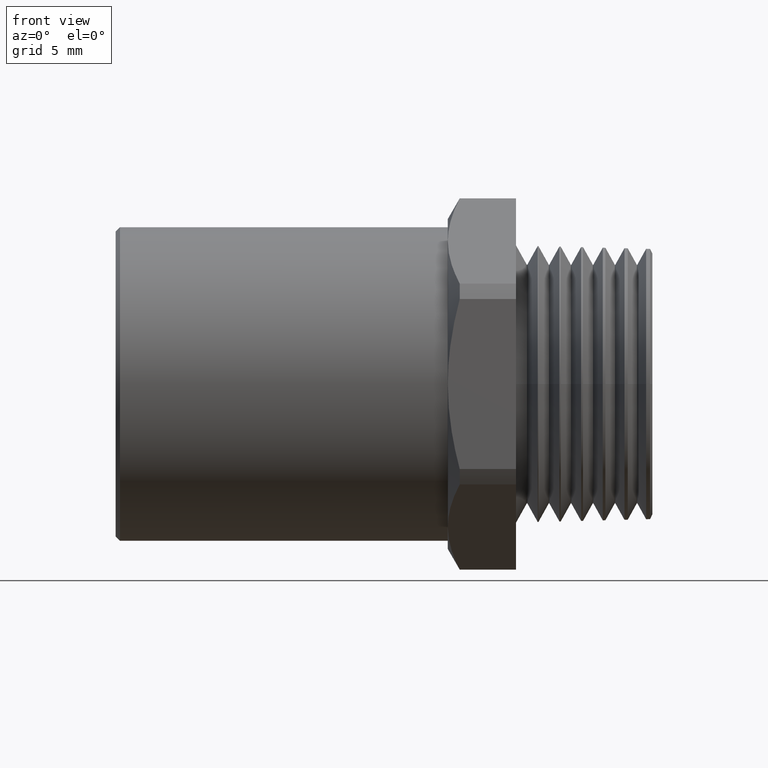
[diagram: clean part render]
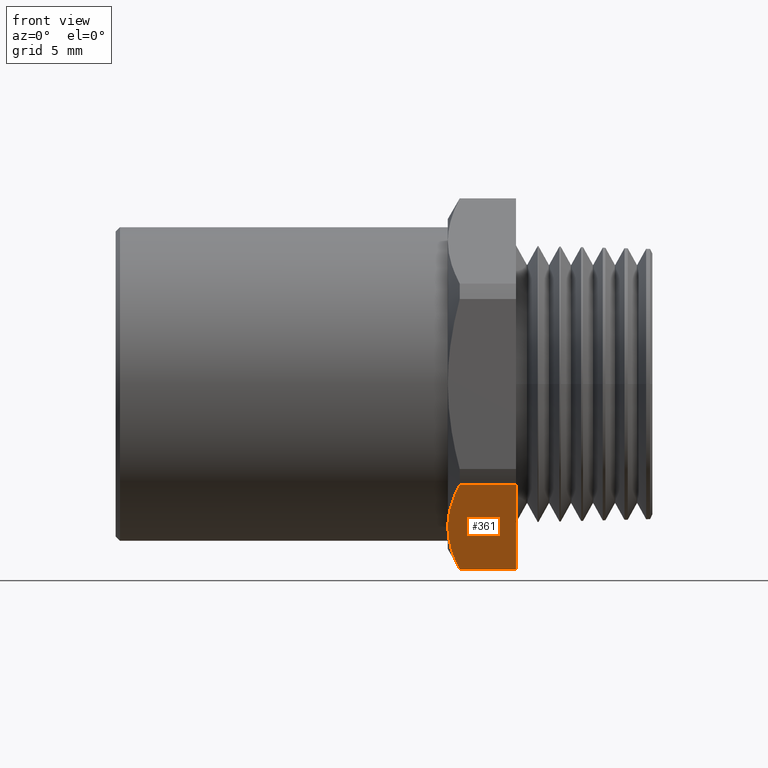
[diagram: same view with one face highlighted and labeled with its STEP entity id]
A machine part, front view. The second image highlights one B-rep face of the part: STEP entity #361.
In plain terms, the highlighted planar face has unit normal (0, 0.5, 0.866).
Its self-contained STEP definition (entity closure, byte-faithful):
#303 = VERTEX_POINT ( 'NONE', #1305 ) ;
#310 = EDGE_CURVE ( 'NONE', #312, #315, #1290, .T. ) ;
#312 = VERTEX_POINT ( 'NONE', #1286 ) ;
#315 = VERTEX_POINT ( 'NONE', #1285 ) ;
#358 = ORIENTED_EDGE ( 'NONE', *, *, #404, .F. ) ;
#361 = ADVANCED_FACE ( 'NONE', ( #1342 ), #1341, .F. ) ;
#364 = EDGE_LOOP ( 'NONE', ( #358, #389, #402, #397, #396 ) ) ;
#373 = EDGE_CURVE ( 'NONE', #375, #392, #1377, .T. ) ;
#375 = VERTEX_POINT ( 'NONE', #1373 ) ;
#389 = ORIENTED_EDGE ( 'NONE', *, *, #373, .F. ) ;
#391 = EDGE_CURVE ( 'NONE', #303, #315, #1417, .T. ) ;
#392 = VERTEX_POINT ( 'NONE', #1416 ) ;
#396 = ORIENTED_EDGE ( 'NONE', *, *, #391, .F. ) ;
#397 = ORIENTED_EDGE ( 'NONE', *, *, #310, .T. ) ;
#402 = ORIENTED_EDGE ( 'NONE', *, *, #405, .T. ) ;
#404 = EDGE_CURVE ( 'NONE', #392, #303, #1448, .T. ) ;
#405 = EDGE_CURVE ( 'NONE', #375, #312, #1447, .T. ) ;
#1285 = CARTESIAN_POINT ( 'NONE',  ( -0.4379367061317362400, -0.3548772287939726500, -0.2281242383187510600 ) ) ;
#1286 = CARTESIAN_POINT ( 'NONE',  ( -0.3100000000000000000, -0.3548772287939726500, -0.2281242383187510600 ) ) ;
#1287 = DIRECTION ( 'NONE',  ( -1.000000000000000000, 0.0000000000000000000, 0.0000000000000000000 ) ) ;
#1288 = VECTOR ( 'NONE', #1287, 39.37007874015748100 ) ;
#1289 = CARTESIAN_POINT ( 'NONE',  ( 0.8951751201848218200, -0.3548772287939726500, -0.2281242383187510600 ) ) ;
#1290 = LINE ( 'NONE', #1289, #1288 ) ;
#1305 = CARTESIAN_POINT ( 'NONE',  ( -0.4649999999999998000, -0.1875000000000001100, -0.3247595264191646700 ) ) ;
#1340 = CARTESIAN_POINT ( 'NONE',  ( 0.8951751201848218200, -0.3548772287939727100, -0.2281242383187510300 ) ) ;
#1341 = PLANE ( 'NONE',  #1401 ) ;
#1342 = FACE_OUTER_BOUND ( 'NONE', #364, .T. ) ;
#1373 = CARTESIAN_POINT ( 'NONE',  ( -0.3100000000000000000, -0.02012277120602770300, -0.4213948145195784400 ) ) ;
#1374 = DIRECTION ( 'NONE',  ( -1.000000000000000000, 0.0000000000000000000, 0.0000000000000000000 ) ) ;
#1375 = VECTOR ( 'NONE', #1374, 39.37007874015748100 ) ;
#1376 = CARTESIAN_POINT ( 'NONE',  ( 0.8951751201848218200, -0.02012277120602739400, -0.4213948145195784400 ) ) ;
#1377 = LINE ( 'NONE', #1376, #1375 ) ;
#1399 = DIRECTION ( 'NONE',  ( 0.0000000000000000000, -0.8660254037844386000, 0.5000000000000001100 ) ) ;
#1400 = DIRECTION ( 'NONE',  ( 0.0000000000000000000, 0.5000000000000001100, 0.8660254037844386000 ) ) ;
#1401 = AXIS2_PLACEMENT_3D ( 'NONE', #1340, #1400, #1399 ) ;
#1406 = CARTESIAN_POINT ( 'NONE',  ( -0.4379367061317362400, -0.3548772287939726500, -0.2281242383187510600 ) ) ;
#1407 = CARTESIAN_POINT ( 'NONE',  ( -0.4463001386843549700, -0.3274934191824042100, -0.2439342881694277500 ) ) ;
#1408 = CARTESIAN_POINT ( 'NONE',  ( -0.4531104135154327400, -0.2998888773609862900, -0.2598717778208794500 ) ) ;
#1409 = CARTESIAN_POINT ( 'NONE',  ( -0.4601361740916117800, -0.2580287566021859400, -0.2840397298092831600 ) ) ;
#1410 = CARTESIAN_POINT ( 'NONE',  ( -0.4619460537740369700, -0.2439997702975246200, -0.2921393688287367000 ) ) ;
#1411 = CARTESIAN_POINT ( 'NONE',  ( -0.4643814054869566100, -0.2157734716291376000, -0.3084358299631569400 ) ) ;
#1412 = CARTESIAN_POINT ( 'NONE',  ( -0.4649999999999996400, -0.2015818598934940900, -0.3166293608189654800 ) ) ;
#1413 = CARTESIAN_POINT ( 'NONE',  ( -0.4649999999999998000, -0.1875000000000001100, -0.3247595264191646700 ) ) ;
#1416 = CARTESIAN_POINT ( 'NONE',  ( -0.4379367061317362400, -0.02012277120602739100, -0.4213948145195783900 ) ) ;
#1417 = B_SPLINE_CURVE_WITH_KNOTS ( 'NONE', 3,
 ( #1413, #1412, #1411, #1410, #1409, #1408, #1407, #1406 ),
 .UNSPECIFIED., .F., .F.,
 ( 4, 2, 2, 4 ),
 ( 0.004955752505757237200, 0.006186616104133077000, 0.007417479702508916800, 0.009879206899260598000 ),
 .UNSPECIFIED. ) ;
#1438 = DIRECTION ( 'NONE',  ( 0.0000000000000000000, -0.8660254037844386000, 0.5000000000000002200 ) ) ;
#1439 = VECTOR ( 'NONE', #1438, 39.37007874015747400 ) ;
#1440 = CARTESIAN_POINT ( 'NONE',  ( -0.4649999999999998000, -0.1875000000000001100, -0.3247595264191646700 ) ) ;
#1441 = CARTESIAN_POINT ( 'NONE',  ( -0.4649999999999996900, -0.1591528771782151900, -0.3411257454110737100 ) ) ;
#1442 = CARTESIAN_POINT ( 'NONE',  ( -0.4624919805492595500, -0.1310564801943160400, -0.3573472077729864500 ) ) ;
#1443 = CARTESIAN_POINT ( 'NONE',  ( -0.4531496724632069800, -0.07529618186202891000, -0.3895404310252263400 ) ) ;
#1444 = CARTESIAN_POINT ( 'NONE',  ( -0.4463378435404650700, -0.04763003522393568400, -0.4055134882341689400 ) ) ;
#1445 = CARTESIAN_POINT ( 'NONE',  ( -0.4379367061317362400, -0.02012277120602739100, -0.4213948145195783900 ) ) ;
#1446 = CARTESIAN_POINT ( 'NONE',  ( -0.3100000000000000000, -0.3548772287939727100, -0.2281242383187510300 ) ) ;
#1447 = LINE ( 'NONE', #1446, #1439 ) ;
#1448 = B_SPLINE_CURVE_WITH_KNOTS ( 'NONE', 3,
 ( #1445, #1444, #1443, #1442, #1441, #1440 ),
 .UNSPECIFIED., .F., .F.,
 ( 4, 2, 4 ),
 ( 2.364213876268290000E-007, 0.002477994463572432000, 0.004955752505757237200 ),
 .UNSPECIFIED. ) ;